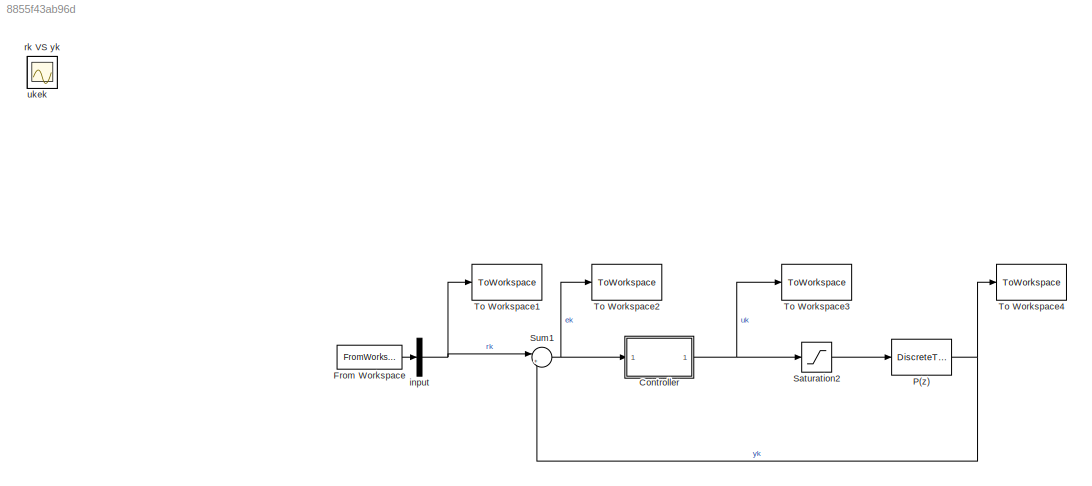
MODEL slx_8855f43ab96d
KIND model
CONFIG AbsTol = auto
CONFIG EnableMultiTasking = off
CONFIG FixedStep = auto
CONFIG MaxStep = auto
CONFIG MinStep = auto
CONFIG RelTol = 1e-3
CONFIG SampleTimeConstraint = Unconstrained
CONFIG Solver = VariableStepAuto
CONFIG SolverName = VariableStepAuto
CONFIG StartTime = 0.0
CONFIG StopTime = Test_time
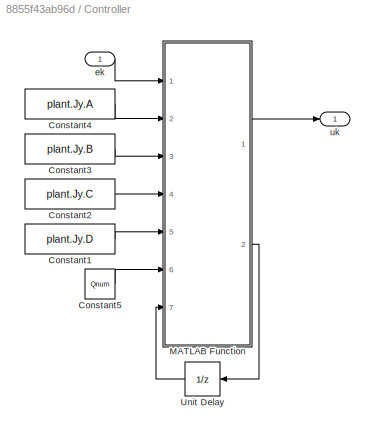
BLOCK [SubSystem] Controller
  Ports = [1, 1]
  RequestExecContextInheritance = off
  Variant = off
BLOCK [Constant] Controller/Constant1
  Value = plant.Jy.D
BLOCK [Constant] Controller/Constant2
  Value = plant.Jy.C
BLOCK [Constant] Controller/Constant3
  Value = plant.Jy.B
BLOCK [Constant] Controller/Constant4
  Value = plant.Jy.A
BLOCK [Constant] Controller/Constant5
  Value = Qnum
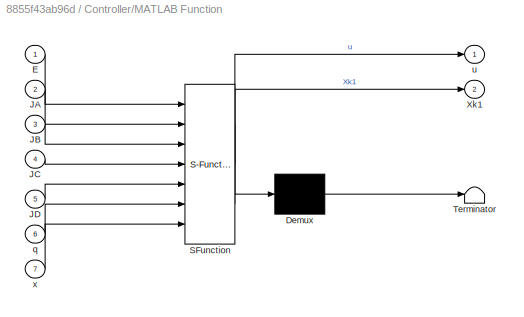
BLOCK [SubSystem] Controller/MATLAB Function
  ErrorFcn = Stateflow.Translate.translate
  PermitHierarchicalResolution = ExplicitOnly
  Ports = [7, 2]
  RequestExecContextInheritance = off
  SFBlockType = MATLAB Function
  TreatAsAtomicUnit = on
  Variant = off
BLOCK [Demux] Controller/MATLAB Function/ Demux 
  Outputs = 1
  Ports = [1, 1]
BLOCK [S-Function] Controller/MATLAB Function/ SFunction 
  EnableBusSupport = on
  FunctionName = sf_sfun
  PortCounts = [7 3]
  Ports = [7, 3]
  SFcnIsStateOwnerBlock = off
  SFunctionDeploymentMode = off
  Tag = Stateflow S-Function Block_fixedQ_Ccode_expanded 2
BLOCK [Terminator] Controller/MATLAB Function/ Terminator 
BLOCK [Inport] Controller/MATLAB Function/E
  IconDisplay = Port number
BLOCK [Inport] Controller/MATLAB Function/JA
  IconDisplay = Port number
  Port = 2
BLOCK [Inport] Controller/MATLAB Function/JB
  IconDisplay = Port number
  Port = 3
BLOCK [Inport] Controller/MATLAB Function/JC
  IconDisplay = Port number
  Port = 4
BLOCK [Inport] Controller/MATLAB Function/JD
  IconDisplay = Port number
  Port = 5
BLOCK [Outport] Controller/MATLAB Function/Xk1
  IconDisplay = Port number
  Port = 2
BLOCK [Inport] Controller/MATLAB Function/q
  IconDisplay = Port number
  Port = 6
BLOCK [Outport] Controller/MATLAB Function/u
  IconDisplay = Port number
BLOCK [Inport] Controller/MATLAB Function/x
  IconDisplay = Port number
  Port = 7
BLOCK [UnitDelay] Controller/Unit Delay
  InitialCondition = zeros(Lq+4,1)
  InputProcessing = Elements as channels (sample based)
  SampleTime = -1
BLOCK [Inport] Controller/ek
  IconDisplay = Port number
BLOCK [Outport] Controller/uk
  IconDisplay = Port number
BLOCK [FromWorkspace] From Workspace
  SampleTime = Ts
  VariableName = inputdata
  ZeroCross = on
BLOCK [DiscreteTransferFcn] P(z)
  Denominator = plant.v2p.den{1}
  InputPortMap = u0
  Numerator = plant.v2p.num{1}
  Ports = [1, 1]
  SampleTime = Ts
BLOCK [Saturate] Saturation2
  InputPortMap = u0
  LowerLimit = -Vmax
  Ports = [1, 1]
  UpperLimit = Vmax
BLOCK [Sum] Sum1
  IconShape = round
  InputSameDT = off
  Inputs = |+-
  OutDataTypeStr = Inherit: Inherit via internal rule
  Ports = [2, 1]
  SaturateOnIntegerOverflow = off
BLOCK [ToWorkspace] To Workspace1
  MaxDataPoints = inf
  Ports = [1]
  SampleTime = -1
  VariableName = rk
BLOCK [ToWorkspace] To Workspace2
  MaxDataPoints = inf
  Ports = [1]
  SampleTime = -1
  VariableName = ek
BLOCK [ToWorkspace] To Workspace3
  MaxDataPoints = inf
  Ports = [1]
  SampleTime = -1
  VariableName = uk
BLOCK [ToWorkspace] To Workspace4
  MaxDataPoints = inf
  Ports = [1]
  SampleTime = -1
  VariableName = yk
BLOCK [Scope] ek
  IOType = viewer
  NumInputPorts = 1
  Ports = []
  ScopeSpecificationString = Simulink.scopes.TimeScopeBlockCfg('CurrentConfiguration', extmgr.ConfigurationSet(extmgr.Configuration('Core','General UI',true),extmgr.Configuration('Core','Source UI',true),extmgr.Configuration('Sources','WiredSimulink',true),extmgr.Configuration('Visuals','Time Domain',true,'SerializedDisplays',{struct('MinYLimReal','-0.00099','MaxYLimReal','0.00067','YLabelReal','','MinYLimMag','0.00000','MaxY...<+1322ch>
BLOCK [Demux] input
  DisplayOption = bar
  Outputs = 1
  Ports = [1, 1]
BLOCK [Scope] rk VS yk
  IOType = viewer
  NumInputPorts = 1
  Ports = []
  ScopeSpecificationString = Simulink.scopes.TimeScopeBlockCfg('CurrentConfiguration', extmgr.ConfigurationSet(extmgr.Configuration('Core','General UI',true),extmgr.Configuration('Core','Source UI',true),extmgr.Configuration('Sources','WiredSimulink',true,'DataLoggingVariableName','ScopeData1'),extmgr.Configuration('Visuals','Time Domain',true,'SerializedDisplays',{struct('MinYLimReal','-87.8912','MaxYLimReal','9.76635','YLab...<+1414ch>
BLOCK [Scope] uk
  IOType = viewer
  NumInputPorts = 1
  Ports = []
  ScopeSpecificationString = Simulink.scopes.TimeScopeBlockCfg('CurrentConfiguration', extmgr.ConfigurationSet(extmgr.Configuration('Core','General UI',true),extmgr.Configuration('Core','Source UI',true),extmgr.Configuration('Sources','WiredSimulink',true,'DataLoggingVariableName','ScopeData2'),extmgr.Configuration('Visuals','Time Domain',true,'SerializedDisplays',{struct('MinYLimReal','-2122013.14672','MaxYLimReal','2573318....<+1426ch>
LINE Controller/Constant1:1 -> Controller/MATLAB Function:5
LINE Controller/Constant2:1 -> Controller/MATLAB Function:4
LINE Controller/Constant3:1 -> Controller/MATLAB Function:3
LINE Controller/Constant4:1 -> Controller/MATLAB Function:2
LINE Controller/Constant5:1 -> Controller/MATLAB Function:6
LINE Controller/MATLAB Function:1 -> Controller/uk:1
LINE Controller/MATLAB Function:2 -> Controller/Unit Delay:1
LINE Controller/Unit Delay:1 -> Controller/MATLAB Function:7
LINE Controller/ek:1 -> Controller/MATLAB Function:1
NET Controller:1 -> Saturation2:1, To Workspace3:1
LINE From Workspace:1 -> input:1
NET P(z):1 -> Sum1:2, To Workspace4:1
LINE Saturation2:1 -> P(z):1
NET Sum1:1 -> Controller:1, To Workspace2:1
NET input:1 -> Sum1:1, To Workspace1:1
note: NET lines group one-source signal fan-out (src -> all destinations, sorted); 1:1 wires keep LINE
CHART Controller/MATLAB Function states=1 transitions=1
  STATE_LABEL 'eML_blk_kernel()'
  STATE_LABEL "SCRIPT:\nfunction [u,Xk1] = C_expanded(E,JA,JB,JC,JD,q,x)\n\nq0 = q(1);\nqxsum = q(2:length(q)).'*x(6:length(x));\n\n% % general\nX0 = (JA(1,:)+JB(1,2)*q0*JC(2,:))*x(1:5) + E*(JB(1,1)+JB(1,2)*JD(2,1)*q0) + JB(1,2)*qxsum;\n\nX1 = (JA(2,:)+JB(2,2)*q0*JC(2,:))*x(1:5) + E*(JB(2,1)+JB(2,2)*JD(2,1)*q0) + JB(2,2)*qxsum;\n\nX2 = (JA(3,:)+JB(3,2)*q0*JC(2,:))*x(1:5) + E*(JB(3,1)+JB(3,2)*JD(2,1)*q0) + JB(3,2)*qxsum;\n\nX...<+386ch>"
